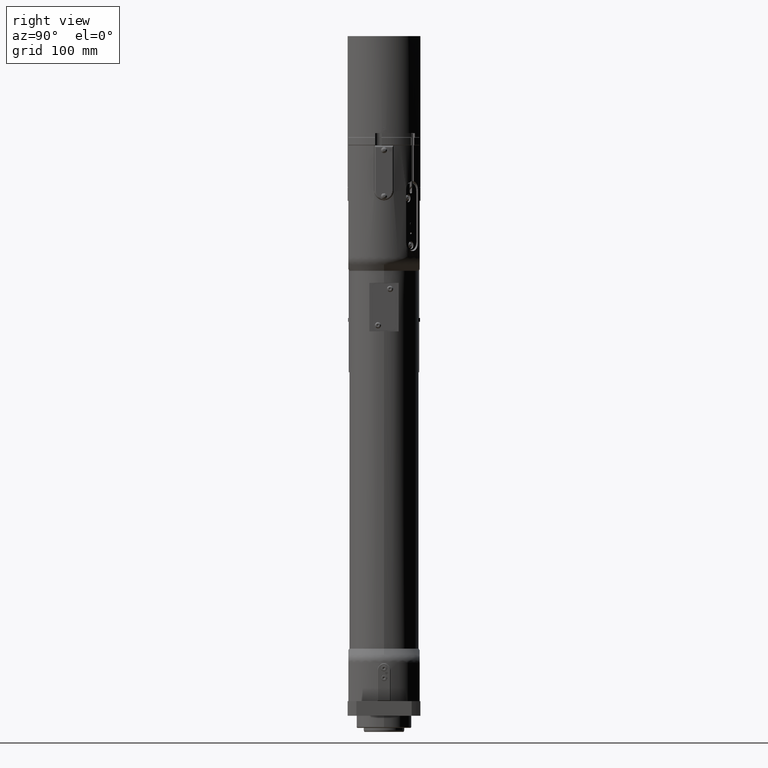
[diagram: clean part render]
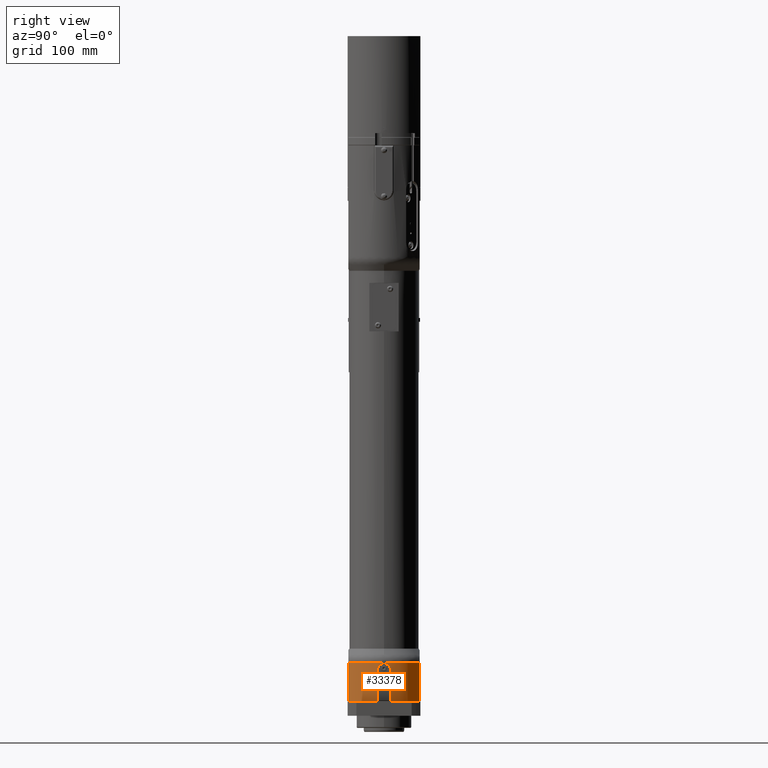
[diagram: same view with one face highlighted and labeled with its STEP entity id]
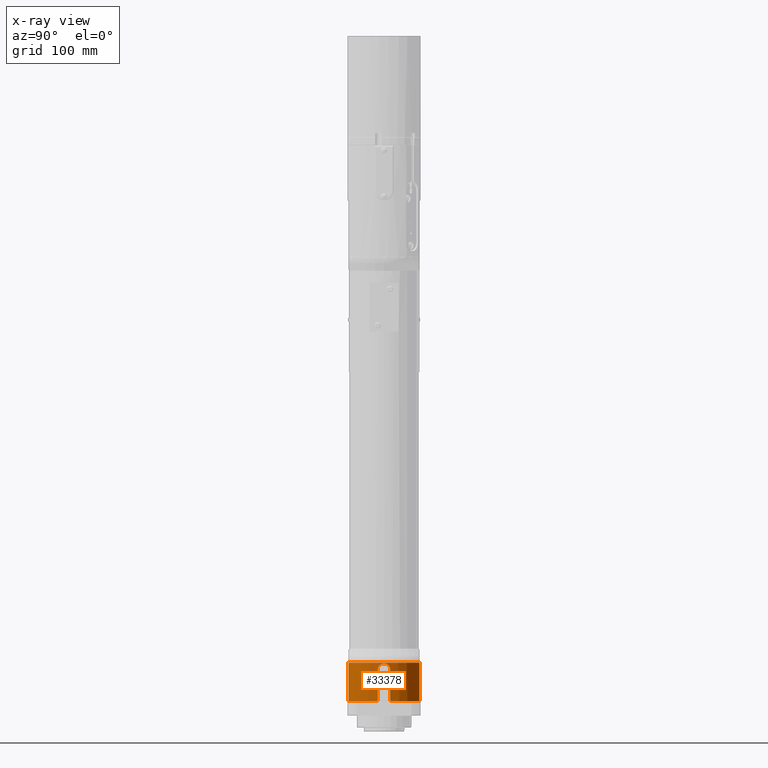
[diagram: x-ray of the same camera — body ghosted, the highlighted face saturated]
A machine part, right view. The second image highlights one B-rep face of the part: STEP entity #33378.
The next image is the same camera in x-ray: the body ghosted, the highlighted face saturated — about 0% of this face is hidden behind the body in this view.
In plain terms, the highlighted cylindrical surface (partial cylindrical patch) has radius 50 mm, axis along (-0, 0, 1).
Its self-contained STEP definition (entity closure, byte-faithful):
#1746=B_SPLINE_CURVE_WITH_KNOTS('',3,(#54019,#54020,#54021,#54022,#54023,
#54024,#54025,#54026,#54027,#54028),.UNSPECIFIED.,.F.,.F.,(4,2,2,2,4),(2.41526028793694,
2.71717124128369,3.01908219463045,3.32098631326793,3.62289043190541),
 .UNSPECIFIED.);
#1747=B_SPLINE_CURVE_WITH_KNOTS('',3,(#54030,#54031,#54032,#54033,#54034,
#54035,#54036,#54037,#54038,#54039),.UNSPECIFIED.,.F.,.F.,(4,2,2,2,4),(1.20763014396847,
1.50953426260596,1.81143838124344,2.11334933459019,2.41526028793694),
 .UNSPECIFIED.);
#2996=FACE_OUTER_BOUND('',#4879,.T.);
#4879=EDGE_LOOP('',(#26106,#26107,#26108,#26109,#26110,#26111,#26112,#26113,
#26114));
#6572=CIRCLE('',#36005,50.);
#6573=CIRCLE('',#36007,50.);
#6574=CIRCLE('',#36008,50.);
#9212=LINE('',#53881,#11908);
#9244=LINE('',#54096,#11940);
#9251=LINE('',#54178,#11947);
#9255=LINE('',#54258,#11951);
#11908=VECTOR('',#42888,10.);
#11940=VECTOR('',#42958,10.);
#11947=VECTOR('',#42969,10.);
#11951=VECTOR('',#43015,10.);
#14643=VERTEX_POINT('',#53878);
#14644=VERTEX_POINT('',#53880);
#14665=VERTEX_POINT('',#54018);
#14666=VERTEX_POINT('',#54029);
#14674=VERTEX_POINT('',#54079);
#14676=VERTEX_POINT('',#54095);
#14686=VERTEX_POINT('',#54175);
#14687=VERTEX_POINT('',#54177);
#14694=VERTEX_POINT('',#54256);
#18660=EDGE_CURVE('',#14644,#14643,#9212,.T.);
#18694=EDGE_CURVE('',#14644,#14665,#1746,.T.);
#18695=EDGE_CURVE('',#14665,#14666,#1747,.T.);
#18708=EDGE_CURVE('',#14676,#14674,#9244,.T.);
#18721=EDGE_CURVE('',#14687,#14686,#9251,.T.);
#18739=EDGE_CURVE('',#14687,#14674,#6572,.T.);
#18740=EDGE_CURVE('',#14676,#14643,#6573,.T.);
#18741=EDGE_CURVE('',#14694,#14686,#6574,.T.);
#18742=EDGE_CURVE('',#14694,#14666,#9255,.T.);
#26106=ORIENTED_EDGE('',*,*,#18660,.T.);
#26107=ORIENTED_EDGE('',*,*,#18740,.F.);
#26108=ORIENTED_EDGE('',*,*,#18708,.T.);
#26109=ORIENTED_EDGE('',*,*,#18739,.F.);
#26110=ORIENTED_EDGE('',*,*,#18721,.T.);
#26111=ORIENTED_EDGE('',*,*,#18741,.F.);
#26112=ORIENTED_EDGE('',*,*,#18742,.T.);
#26113=ORIENTED_EDGE('',*,*,#18695,.F.);
#26114=ORIENTED_EDGE('',*,*,#18694,.F.);
#30407=CYLINDRICAL_SURFACE('',#36006,50.);
#33378=ADVANCED_FACE('',(#2996),#30407,.T.);
#36005=AXIS2_PLACEMENT_3D('',#54253,#43007,#43008);
#36006=AXIS2_PLACEMENT_3D('',#54254,#43009,#43010);
#36007=AXIS2_PLACEMENT_3D('',#54255,#43011,#43012);
#36008=AXIS2_PLACEMENT_3D('',#54257,#43013,#43014);
#42888=DIRECTION('',(1.66741034889409E-13,-7.79443320540401E-15,-1.));
#42958=DIRECTION('',(-1.66741034889409E-13,7.79443320540401E-15,1.));
#42969=DIRECTION('',(1.66741034889409E-13,-7.79443320540401E-15,-1.));
#43007=DIRECTION('center_axis',(-1.66741034889409E-13,7.79443320540401E-15,
1.));
#43008=DIRECTION('ref_axis',(-1.,1.29112725371859E-13,-1.6674103488941E-13));
#43009=DIRECTION('center_axis',(-1.66741034889409E-13,7.79443320540401E-15,
1.));
#43010=DIRECTION('ref_axis',(1.,-1.28990260691945E-13,1.6674103488941E-13));
#43011=DIRECTION('center_axis',(1.66741034889409E-13,-7.79443320540944E-15,
-1.));
#43012=DIRECTION('ref_axis',(-1.,1.29112725371859E-13,-1.6674103488941E-13));
#43013=DIRECTION('center_axis',(1.66741034889409E-13,-7.79443320540944E-15,
-1.));
#43014=DIRECTION('ref_axis',(-1.,1.29112725371859E-13,-1.6674103488941E-13));
#43015=DIRECTION('',(-1.66741034889409E-13,7.79443320540401E-15,1.));
#53878=CARTESIAN_POINT('',(49.3558507171474,7.99999999997128,18.0000000000635));
#53880=CARTESIAN_POINT('',(49.355850717141,7.99999999997158,56.5000000000635));
#53881=CARTESIAN_POINT('',(49.3558507171474,7.99999999997128,18.0000000000635));
#54018=CARTESIAN_POINT('',(50.0000000001264,-2.84386391666631E-11,64.5000000000637));
#54019=CARTESIAN_POINT('Ctrl Pts',(49.355850717141,7.99999999997158,56.5000000000635));
#54020=CARTESIAN_POINT('Ctrl Pts',(49.3558507171409,7.99999999997159,57.5063698445527));
#54021=CARTESIAN_POINT('Ctrl Pts',(49.3898131081368,7.79852197726256,58.5786141329376));
#54022=CARTESIAN_POINT('Ctrl Pts',(49.511901552989,6.98156046967559,60.5491230400806));
#54023=CARTESIAN_POINT('Ctrl Pts',(49.5982009321255,6.36616966573667,61.4475388332832));
#54024=CARTESIAN_POINT('Ctrl Pts',(49.7597360266737,4.94755489078902,62.8661536082309));
#54025=CARTESIAN_POINT('Ctrl Pts',(49.8455508247872,4.04913218971329,63.4815570083414));
#54026=CARTESIAN_POINT('Ctrl Pts',(49.9665271172124,2.07859960518118,64.2985276684425));
#54027=CARTESIAN_POINT('Ctrl Pts',(50.0000000001265,1.00634706209651,64.5000000000637));
#54028=CARTESIAN_POINT('Ctrl Pts',(50.0000000001264,-2.84386403315295E-11,
64.5000000000637));
#54029=CARTESIAN_POINT('',(49.3558507171389,-8.00000000002836,56.5000000000636));
#54030=CARTESIAN_POINT('Ctrl Pts',(50.0000000001264,-2.83847945148352E-11,
64.5000000000637));
#54031=CARTESIAN_POINT('Ctrl Pts',(50.0000000001263,-1.00634706215333,64.5000000000637));
#54032=CARTESIAN_POINT('Ctrl Pts',(49.9665271172119,-2.078599605238,64.2985276684426));
#54033=CARTESIAN_POINT('Ctrl Pts',(49.8455508247862,-4.04913218977009,63.4815570083414));
#54034=CARTESIAN_POINT('Ctrl Pts',(49.7597360266724,-4.94755489084581,62.866153608231));
#54035=CARTESIAN_POINT('Ctrl Pts',(49.5982009321239,-6.36616966579344,61.4475388332833));
#54036=CARTESIAN_POINT('Ctrl Pts',(49.5119015529872,-6.98156046973235,60.5491230400807));
#54037=CARTESIAN_POINT('Ctrl Pts',(49.3898131081348,-7.79852197731932,58.5786141329377));
#54038=CARTESIAN_POINT('Ctrl Pts',(49.3558507171388,-8.00000000002836,57.5063698445528));
#54039=CARTESIAN_POINT('Ctrl Pts',(49.3558507171389,-8.00000000002836,56.5000000000636));
#54079=CARTESIAN_POINT('',(23.7486841742077,43.999999999975,65.5166604984543));
#54095=CARTESIAN_POINT('',(23.7486841742156,43.9999999999746,18.0000000000589));
#54096=CARTESIAN_POINT('',(23.7486841742156,43.9999999999746,18.0000000000589));
#54175=CARTESIAN_POINT('',(23.7486841742043,-44.0000000000254,18.0000000000596));
#54177=CARTESIAN_POINT('',(23.7486841741963,-44.000000000025,65.516660498455));
#54178=CARTESIAN_POINT('',(23.7486841742042,-44.0000000000254,18.0000000000596));
#54253=CARTESIAN_POINT('Origin',(1.26216308499065E-10,-2.19234746902002E-11,
65.5166604984507));
#54254=CARTESIAN_POINT('Origin',(1.34139285645056E-10,-2.22938401265988E-11,
18.0000000000553));
#54255=CARTESIAN_POINT('Origin',(1.34139285645056E-10,-2.22938401265988E-11,
18.0000000000553));
#54256=CARTESIAN_POINT('',(49.3558507171454,-8.00000000002866,18.0000000000636));
#54257=CARTESIAN_POINT('Origin',(1.34139285645056E-10,-2.22938401265988E-11,
18.0000000000553));
#54258=CARTESIAN_POINT('',(49.3558507171454,-8.00000000002866,18.0000000000636));